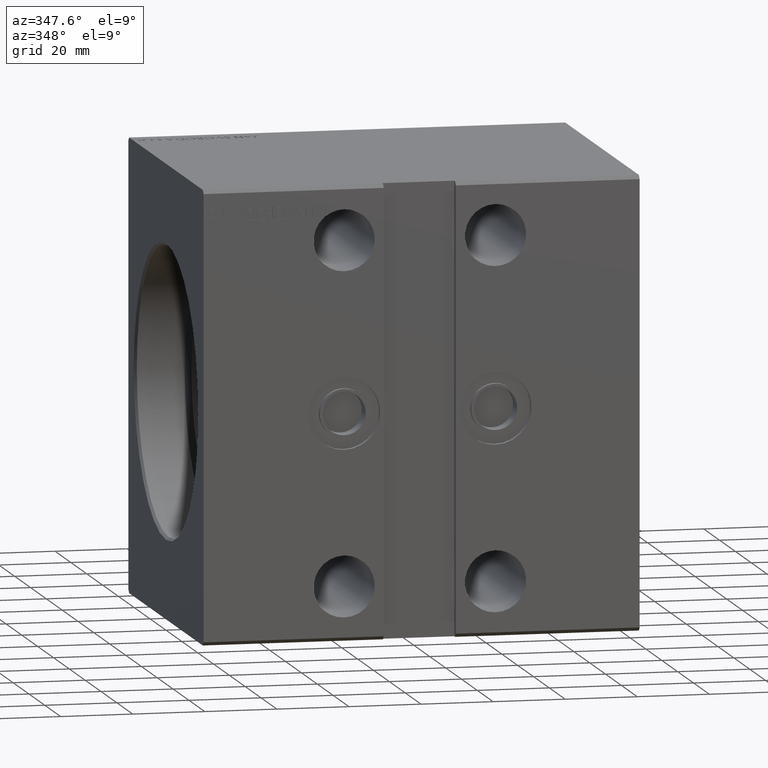
[diagram: clean part render]
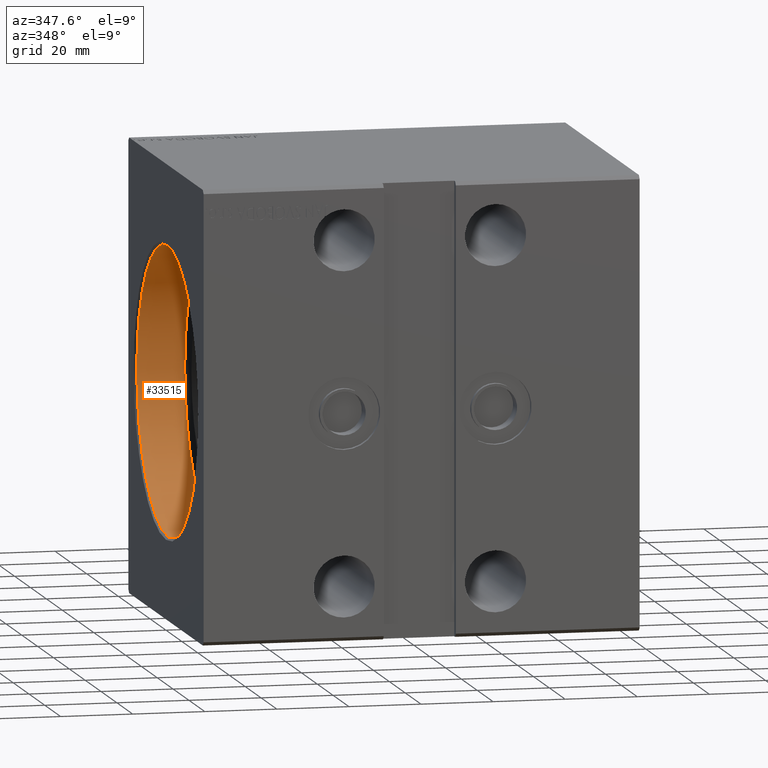
[diagram: same view with one face highlighted and labeled with its STEP entity id]
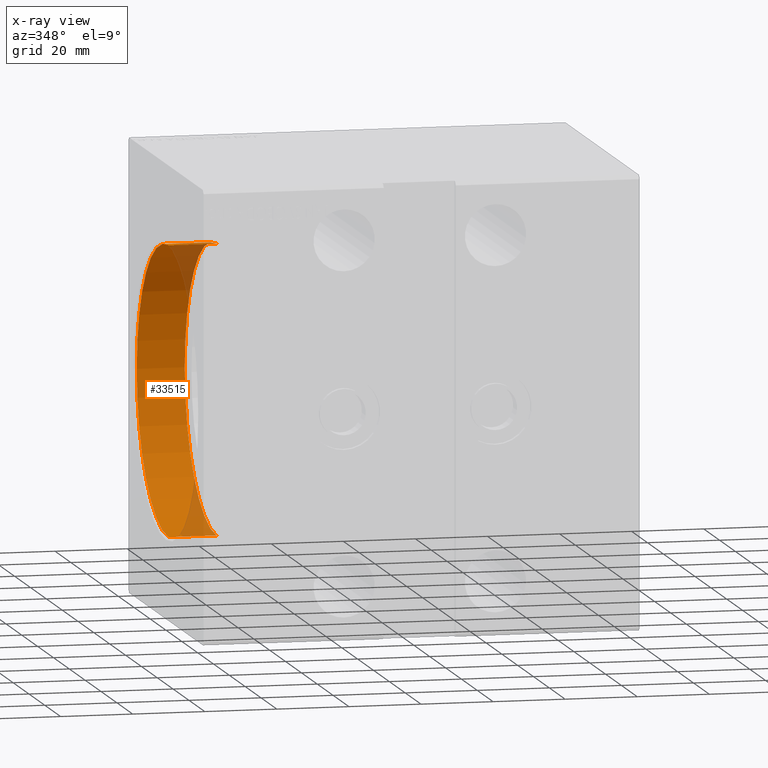
[diagram: x-ray of the same camera — body ghosted, the highlighted face saturated]
A machine part, auxiliary view. The second image highlights one B-rep face of the part: STEP entity #33515.
The next image is the same camera in x-ray: the body ghosted, the highlighted face saturated — about 12% of this face is hidden behind the body in this view.
In plain terms, the highlighted cylindrical surface (partial cylindrical patch) has radius 40 mm, axis along (-1, -0, -0).
Its self-contained STEP definition (entity closure, byte-faithful):
#568 = CARTESIAN_POINT ( 'NONE',  ( 14.00000000000000000, 0.000000000000000000, 40.00000000000000000 ) ) ;
#713 = DIRECTION ( 'NONE',  ( -1.000000000000000000, -0.000000000000000000, -0.000000000000000000 ) ) ;
#1810 = DIRECTION ( 'NONE',  ( 0.000000000000000000, 0.000000000000000000, -1.000000000000000000 ) ) ;
#1821 = ORIENTED_EDGE ( 'NONE', *, *, #19187, .F. ) ;
#2257 = AXIS2_PLACEMENT_3D ( 'NONE', #40258, #11169, #4384 ) ;
#3780 = LINE ( 'NONE', #568, #9000 ) ;
#4254 = CARTESIAN_POINT ( 'NONE',  ( 14.00000000000000000, 4.898587196589413026E-15, -40.00000000000000000 ) ) ;
#4310 = CIRCLE ( 'NONE', #2257, 40.00000000000000000 ) ;
#4384 = DIRECTION ( 'NONE',  ( 0.000000000000000000, 0.000000000000000000, 1.000000000000000000 ) ) ;
#4732 = AXIS2_PLACEMENT_3D ( 'NONE', #19885, #21133, #1810 ) ;
#6541 = DIRECTION ( 'NONE',  ( -1.000000000000000000, -0.000000000000000000, -0.000000000000000000 ) ) ;
#6702 = VERTEX_POINT ( 'NONE', #19773 ) ;
#7517 = CARTESIAN_POINT ( 'NONE',  ( 14.00000000000000000, 0.000000000000000000, 0.000000000000000000 ) ) ;
#9000 = VECTOR ( 'NONE', #6541, 1000.000000000000000 ) ;
#11169 = DIRECTION ( 'NONE',  ( -1.000000000000000000, 0.000000000000000000, 0.000000000000000000 ) ) ;
#12305 = ORIENTED_EDGE ( 'NONE', *, *, #34338, .T. ) ;
#13512 = VERTEX_POINT ( 'NONE', #30666 ) ;
#17690 = EDGE_CURVE ( 'NONE', #27729, #6702, #3780, .T. ) ;
#19187 = EDGE_CURVE ( 'NONE', #20696, #13512, #27491, .T. ) ;
#19773 = CARTESIAN_POINT ( 'NONE',  ( 0.7000000000000130562, 0.000000000000000000, 40.00000000000000000 ) ) ;
#19885 = CARTESIAN_POINT ( 'NONE',  ( 0.7000000000000130562, 0.000000000000000000, 0.000000000000000000 ) ) ;
#20460 = DIRECTION ( 'NONE',  ( 0.000000000000000000, 0.000000000000000000, 1.000000000000000000 ) ) ;
#20696 = VERTEX_POINT ( 'NONE', #4254 ) ;
#21133 = DIRECTION ( 'NONE',  ( -1.000000000000000000, 0.000000000000000000, 0.000000000000000000 ) ) ;
#23020 = CIRCLE ( 'NONE', #4732, 40.00000000000000000 ) ;
#23438 = CYLINDRICAL_SURFACE ( 'NONE', #36606, 40.00000000000000000 ) ;
#24299 = DIRECTION ( 'NONE',  ( -1.000000000000000000, -0.000000000000000000, -0.000000000000000000 ) ) ;
#26841 = FACE_OUTER_BOUND ( 'NONE', #34138, .T. ) ;
#27491 = LINE ( 'NONE', #40457, #41627 ) ;
#27729 = VERTEX_POINT ( 'NONE', #29337 ) ;
#29337 = CARTESIAN_POINT ( 'NONE',  ( 14.00000000000000000, 0.000000000000000000, 40.00000000000000000 ) ) ;
#30666 = CARTESIAN_POINT ( 'NONE',  ( 0.7000000000000130562, 4.898587196589413026E-15, -40.00000000000000000 ) ) ;
#31662 = EDGE_CURVE ( 'NONE', #27729, #20696, #4310, .T. ) ;
#33515 = ADVANCED_FACE ( 'NONE', ( #26841 ), #23438, .F. ) ;
#34138 = EDGE_LOOP ( 'NONE', ( #1821, #37217, #35143, #12305 ) ) ;
#34338 = EDGE_CURVE ( 'NONE', #6702, #13512, #23020, .T. ) ;
#35143 = ORIENTED_EDGE ( 'NONE', *, *, #17690, .T. ) ;
#36606 = AXIS2_PLACEMENT_3D ( 'NONE', #7517, #713, #20460 ) ;
#37217 = ORIENTED_EDGE ( 'NONE', *, *, #31662, .F. ) ;
#40258 = CARTESIAN_POINT ( 'NONE',  ( 14.00000000000000000, 0.000000000000000000, 0.000000000000000000 ) ) ;
#40457 = CARTESIAN_POINT ( 'NONE',  ( 14.00000000000000000, 4.898587196589413026E-15, -40.00000000000000000 ) ) ;
#41627 = VECTOR ( 'NONE', #24299, 1000.000000000000000 ) ;